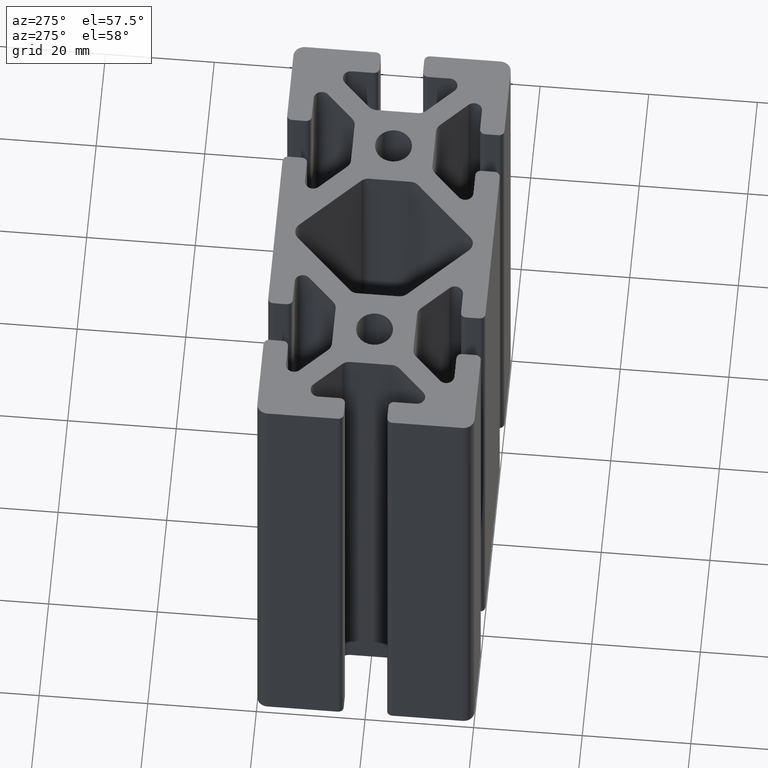
[diagram: clean part render]
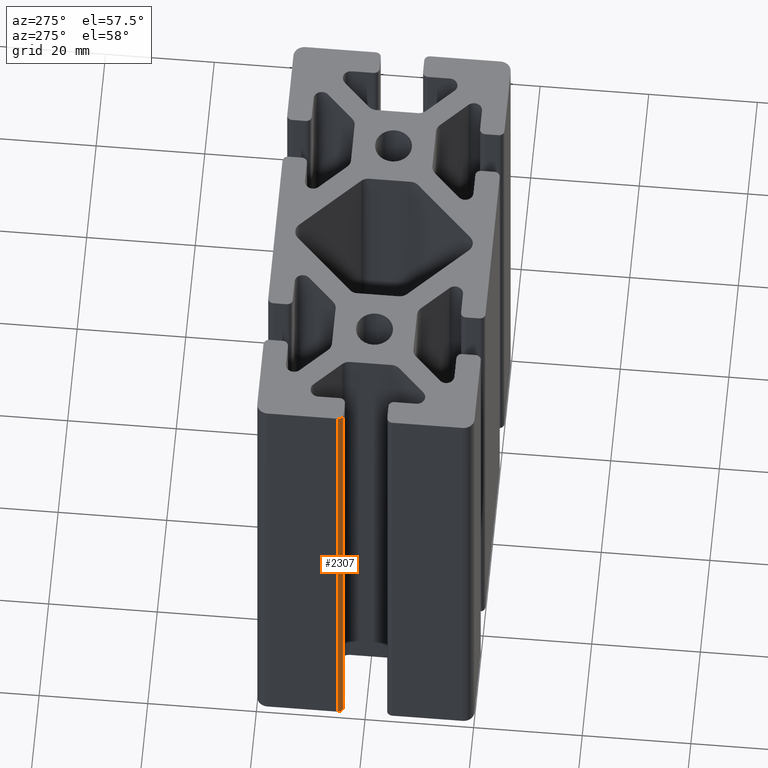
[diagram: same view with one face highlighted and labeled with its STEP entity id]
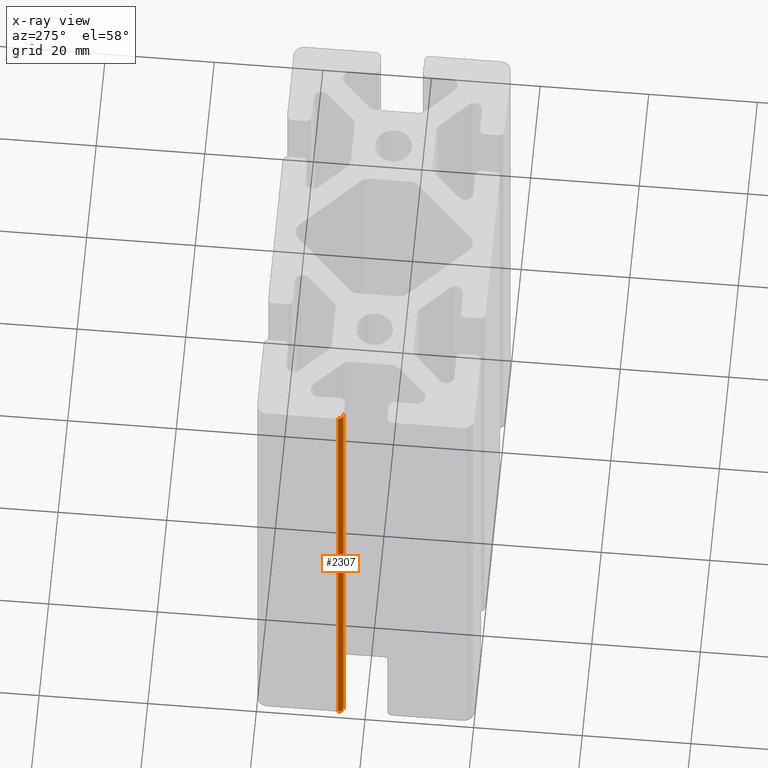
[diagram: x-ray of the same camera — body ghosted, the highlighted face saturated]
A machine part, auxiliary view. The second image highlights one B-rep face of the part: STEP entity #2307.
The next image is the same camera in x-ray: the body ghosted, the highlighted face saturated — about 0% of this face is hidden behind the body in this view.
In plain terms, the highlighted cylindrical surface (edge-blend (fillet) strip) has radius 1 mm, axis along (0, 0, 1).
Its self-contained STEP definition (entity closure, byte-faithful):
#91=LINE('',#3586,#323);
#93=LINE('',#3592,#325);
#323=VECTOR('',#2871,100.);
#325=VECTOR('',#2877,100.);
#587=FACE_OUTER_BOUND('',#709,.T.);
#709=EDGE_LOOP('',(#1659,#1660,#1661,#1662));
#837=CIRCLE('',#2472,1.);
#838=CIRCLE('',#2473,1.);
#997=VERTEX_POINT('',#3583);
#998=VERTEX_POINT('',#3585);
#999=VERTEX_POINT('',#3589);
#1000=VERTEX_POINT('',#3591);
#1269=EDGE_CURVE('',#998,#997,#91,.T.);
#1271=EDGE_CURVE('',#999,#997,#837,.T.);
#1272=EDGE_CURVE('',#999,#1000,#93,.T.);
#1273=EDGE_CURVE('',#998,#1000,#838,.T.);
#1659=ORIENTED_EDGE('',*,*,#1271,.F.);
#1660=ORIENTED_EDGE('',*,*,#1272,.T.);
#1661=ORIENTED_EDGE('',*,*,#1273,.F.);
#1662=ORIENTED_EDGE('',*,*,#1269,.T.);
#2228=CYLINDRICAL_SURFACE('',#2471,1.);
#2307=ADVANCED_FACE('',(#587),#2228,.T.);
#2471=AXIS2_PLACEMENT_3D('',#3588,#2873,#2874);
#2472=AXIS2_PLACEMENT_3D('',#3590,#2875,#2876);
#2473=AXIS2_PLACEMENT_3D('',#3593,#2878,#2879);
#2871=DIRECTION('',(0.,0.,1.));
#2873=DIRECTION('center_axis',(0.,0.,1.));
#2874=DIRECTION('ref_axis',(1.,4.44089209850078E-15,0.));
#2875=DIRECTION('center_axis',(0.,0.,1.));
#2876=DIRECTION('ref_axis',(1.,4.44089209850078E-15,0.));
#2877=DIRECTION('',(0.,0.,-1.));
#2878=DIRECTION('center_axis',(0.,0.,-1.));
#2879=DIRECTION('ref_axis',(1.,4.44089209850078E-15,0.));
#3583=CARTESIAN_POINT('',(-39.,4.,100.));
#3585=CARTESIAN_POINT('',(-39.,4.,0.));
#3586=CARTESIAN_POINT('',(-39.,4.,0.));
#3588=CARTESIAN_POINT('Origin',(-39.,5.,0.));
#3589=CARTESIAN_POINT('',(-40.,5.,100.));
#3590=CARTESIAN_POINT('Origin',(-39.,5.,100.));
#3591=CARTESIAN_POINT('',(-40.,5.,0.));
#3592=CARTESIAN_POINT('',(-40.,5.,0.));
#3593=CARTESIAN_POINT('Origin',(-39.,5.,0.));